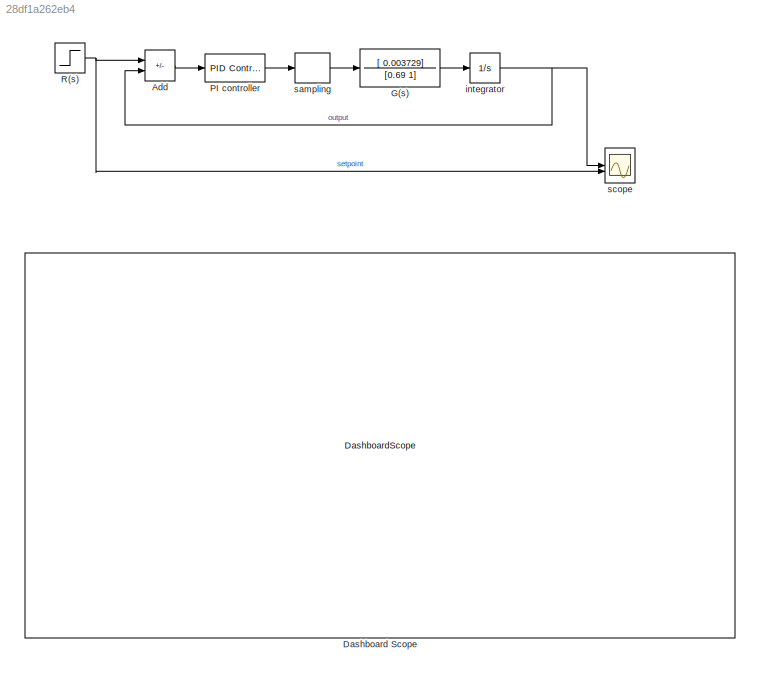
MODEL slx_28df1a262eb4
KIND model
CONFIG AbsTol = auto
CONFIG EnableMultiTasking = off
CONFIG FixedStep = auto
CONFIG MaxStep = auto
CONFIG MinStep = auto
CONFIG RelTol = 1e-3
CONFIG SampleTimeConstraint = Unconstrained
CONFIG SolverName = VariableStepAuto
CONFIG StartTime = 0.0
CONFIG StopTime = 30
BLOCK [Sum] Add
  IconShape = rectangular
  Inputs = +-
BLOCK [DashboardScope] Dashboard Scope
  NormalizeYAxis = on
  Ymax = 10
  Ymin = 0
BLOCK [TransferFcn] G(s)
  Denominator = [0.69 1]
  Numerator = [  0.003729]
BLOCK [Reference] PI controller  REF=slpidlib/PID Controller
  LibrarySourceBlock = simulink/Continuous/PID Controller
  SourceBlock = slpidlib/PID Controller
  SourceType = PID 1dof
BLOCK [Step] R(s)
  SampleTime = 0
  Time = 0
BLOCK [Integrator] integrator
BLOCK [ZeroOrderHold] sampling
  SampleTime = 0.1
BLOCK [Scope] scope
  Floating = off
  NumInputPorts = 2
  ScopeSpecificationString = Simulink.scopes.TimeScopeBlockCfg('CurrentConfiguration', extmgr.ConfigurationSet(extmgr.Configuration('Core','General UI',true),extmgr.Configuration('Core','Source UI',true),extmgr.Configuration('Sources','WiredSimulink',true),extmgr.Configuration('Visuals','Time Domain',true,'SerializedDisplays',{struct('MinYLimReal','0.00000','MaxYLimReal','1.2','YLabelReal','Amplitude','MinYLimMag','0.00000','...<+1918ch>
LINE Add:1 -> PI controller:1
LINE G(s):1 -> integrator:1
LINE PI controller:1 -> sampling:1
NET R(s):1 -> Add:1, scope:2
NET integrator:1 -> Add:2, scope:1
LINE sampling:1 -> G(s):1
note: NET lines group one-source signal fan-out (src -> all destinations, sorted); 1:1 wires keep LINE
